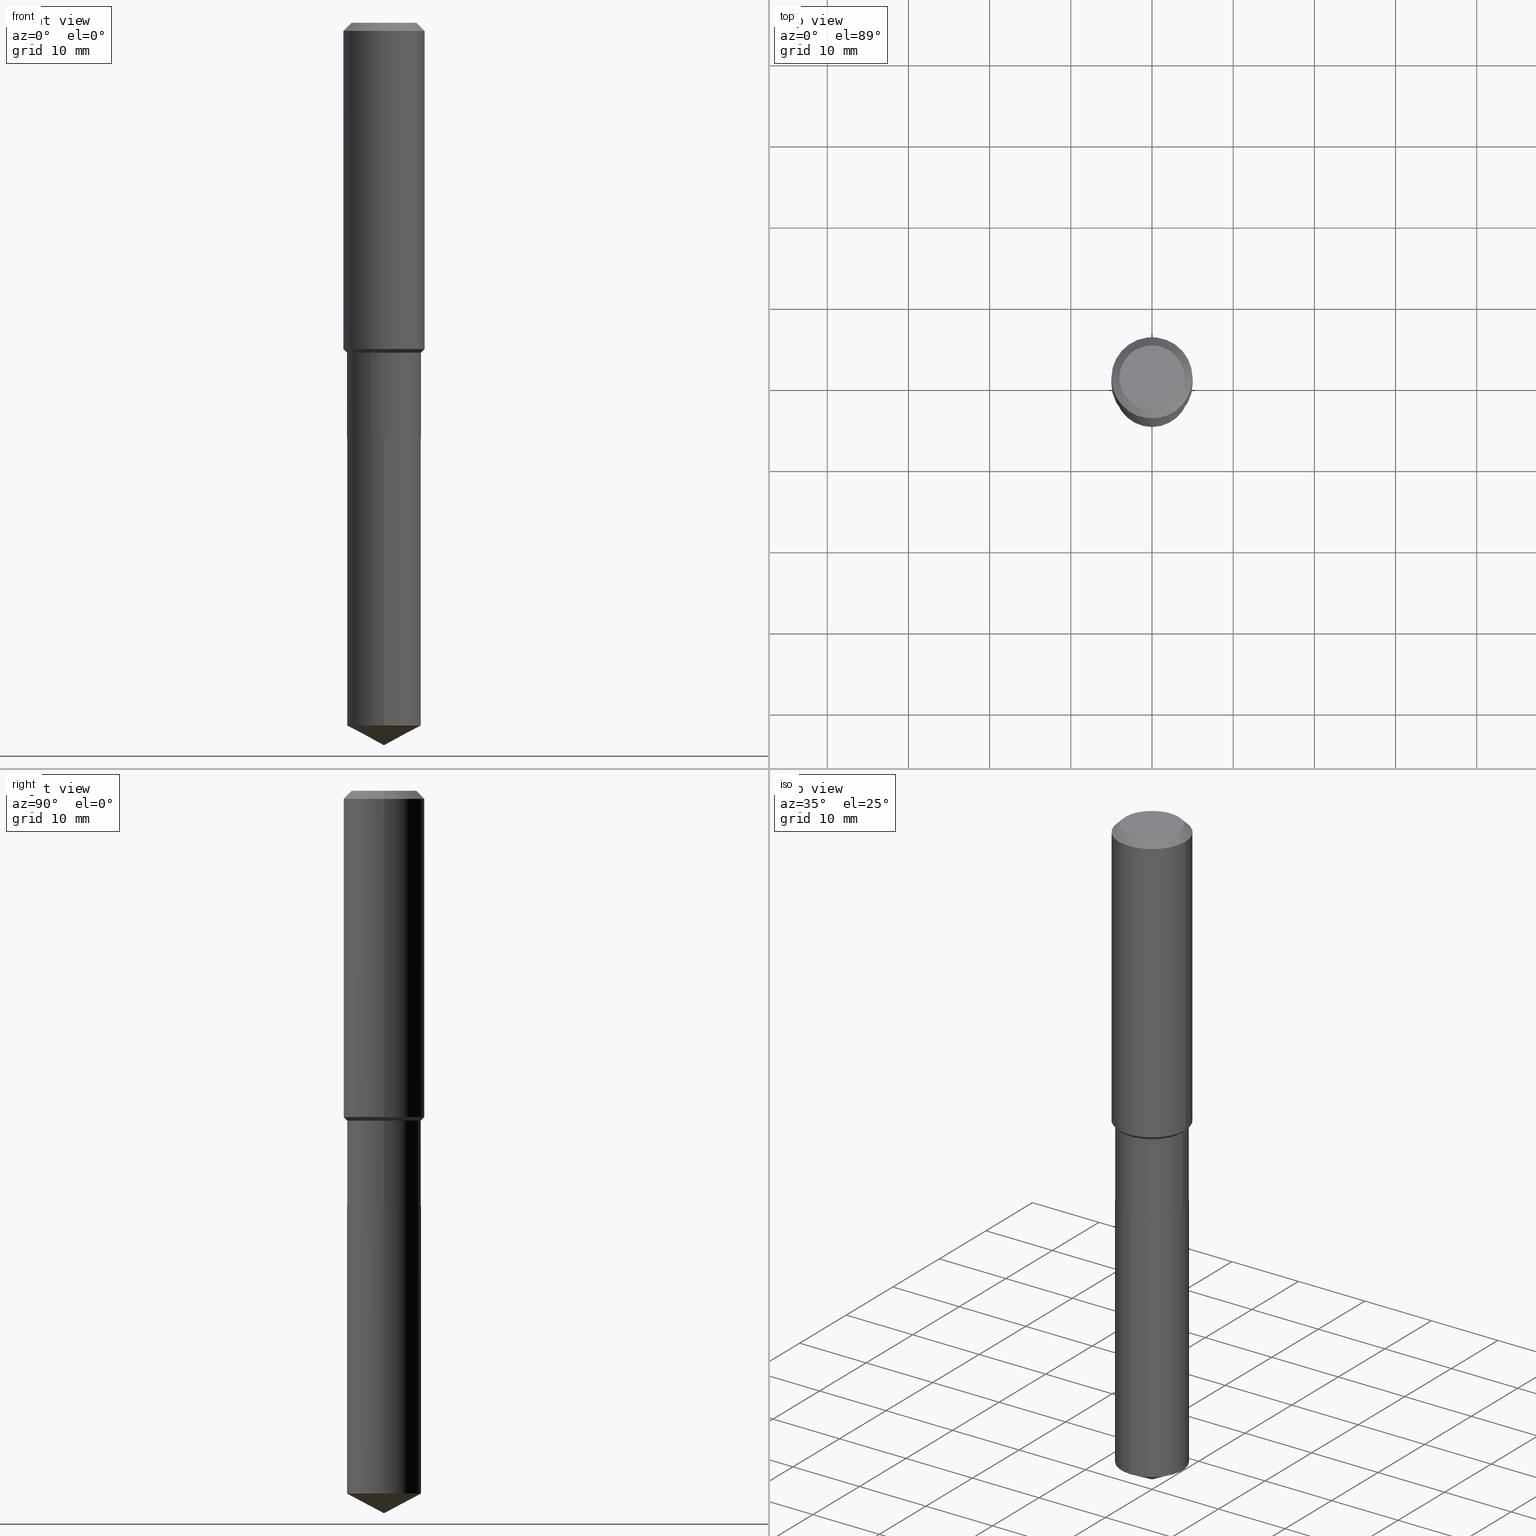
[diagram: canonical four-view strip — front | top / right | iso, engineering-drawing reading convention]
A machine part, canonical four-view strip (front | top / right | iso — engineering-drawing reading convention). The complete STEP part file that produces these views, byte-faithful:
ISO-10303-21;
HEADER;
FILE_DESCRIPTION (( 'STEP AP203' ),
    '1' );
FILE_NAME ('54719.STEP',
    '2024-04-24T15:32:47',
    ( '' ),
    ( '' ),
    'SwSTEP 2.0',
    'SolidWorks 2023',
    '' );
FILE_SCHEMA (( 'CONFIG_CONTROL_DESIGN' ));
ENDSEC;

DATA;
#1 = CARTESIAN_POINT ( 'NONE',  ( 8.335094467611322016E-29, -1.190008731636025747E-14, -3.408351815130433060 ) ) ;
#2 = CC_DESIGN_DATE_AND_TIME_ASSIGNMENT ( #390, #47, ( #488 ) ) ;
#3 = LINE ( 'NONE', #32, #51 ) ;
#4 = ORIENTED_EDGE ( 'NONE', *, *, #30, .F. ) ;
#5 = CARTESIAN_POINT ( 'NONE',  ( 8.568649567657371395E-29, -1.223384239470263294E-14, -3.503899999999999793 ) ) ;
#6 = EDGE_CURVE ( 'NONE', #261, #141, #393, .T. ) ;
#7 = CARTESIAN_POINT ( 'NONE',  ( 0.1968500000000000250, -1.512055823412797189E-15, -0.03937000000000029365 ) ) ;
#8 = AXIS2_PLACEMENT_3D ( 'NONE', #248, #286, #432 ) ;
#9 = ORIENTED_EDGE ( 'NONE', *, *, #270, .T. ) ;
#10 = ADVANCED_BREP_SHAPE_REPRESENTATION ( '54719', ( #116, #442, #246 ), #117 ) ;
#11 = FACE_OUTER_BOUND ( 'NONE', #445, .T. ) ;
#12 = CARTESIAN_POINT ( 'NONE',  ( 0.1796999999999999986, -8.281095439468167762E-15, -2.012399999999999967 ) ) ;
#13 = CARTESIAN_POINT ( 'NONE',  ( 0.000000000000000000, 0.000000000000000000, 0.000000000000000000 ) ) ;
#14 = DIRECTION ( 'NONE',  ( 1.000000000000000000, -6.982962677686265922E-15, 4.876223630392693006E-29 ) ) ;
#15 = ADVANCED_FACE ( 'NONE', ( #108 ), #463, .T. ) ;
#16 = CARTESIAN_POINT ( 'NONE',  ( -1.254838393180172821E-15, -0.1797000000000070208, -2.012899999999999245 ) ) ;
#17 = AXIS2_PLACEMENT_3D ( 'NONE', #349, #416, #346 ) ;
#18 = AXIS2_PLACEMENT_3D ( 'NONE', #311, #143, #453 ) ;
#19 = ORIENTED_EDGE ( 'NONE', *, *, #232, .F. ) ;
#20 = ORIENTED_EDGE ( 'NONE', *, *, #289, .F. ) ;
#21 = EDGE_CURVE ( 'NONE', #310, #300, #255, .T. ) ;
#22 = ORIENTED_EDGE ( 'NONE', *, *, #206, .F. ) ;
#23 = PERSON_AND_ORGANIZATION ( #220, #157 ) ;
#24 = AXIS2_PLACEMENT_3D ( 'NONE', #308, #348, #195 ) ;
#25 = DIRECTION ( 'NONE',  ( -2.445468806185136597E-29, 3.491481338843145583E-15, 1.000000000000000000 ) ) ;
#26 = ORIENTED_EDGE ( 'NONE', *, *, #289, .T. ) ;
#27 = APPROVAL_DATE_TIME ( #214, #326 ) ;
#28 = ORIENTED_EDGE ( 'NONE', *, *, #21, .T. ) ;
#29 = PERSON_AND_ORGANIZATION ( #220, #157 ) ;
#30 = EDGE_CURVE ( 'NONE', #306, #476, #380, .T. ) ;
#31 = DIRECTION ( 'NONE',  ( -2.445468806185136597E-29, 3.491481338843145583E-15, 1.000000000000000000 ) ) ;
#32 = CARTESIAN_POINT ( 'NONE',  ( -0.1968500000000000250, 1.237136582792286225E-15, -0.03937000000000029365 ) ) ;
#33 = COORDINATED_UNIVERSAL_TIME_OFFSET ( 5, 0, .BEHIND. ) ;
#34 = AXIS2_PLACEMENT_3D ( 'NONE', #269, #159, #465 ) ;
#35 = CIRCLE ( 'NONE', #56, 0.1796999999999999986 ) ;
#36 = ORIENTED_EDGE ( 'NONE', *, *, #115, .F. ) ;
#37 = DIRECTION ( 'NONE',  ( -2.445468806185136597E-29, 3.491481338843145583E-15, 1.000000000000000000 ) ) ;
#38 = AXIS2_PLACEMENT_3D ( 'NONE', #205, #433, #127 ) ;
#39 = CARTESIAN_POINT ( 'NONE',  ( -8.771169578878997891E-28, 1.252231229896107347E-13, 35.86617874015747987 ) ) ;
#40 = CARTESIAN_POINT ( 'NONE',  ( -1.254838393180172821E-15, -0.1797000000000070208, -2.012899999999999245 ) ) ;
#41 = ORIENTED_EDGE ( 'NONE', *, *, #175, .T. ) ;
#42 = DIRECTION ( 'NONE',  ( -6.982962677686265922E-15, -1.000000000000000000, 3.040454083098790380E-15 ) ) ;
#43 = ADVANCED_FACE ( 'NONE', ( #277 ), #239, .T. ) ;
#44 = VECTOR ( 'NONE', #122, 39.37007874015748143 ) ;
#45 = DIRECTION ( 'NONE',  ( -2.445468806185136597E-29, 3.491481338843145583E-15, 1.000000000000000000 ) ) ;
#46 = APPROVAL_PERSON_ORGANIZATION ( #229, #461, #382 ) ;
#47 = DATE_TIME_ROLE ( 'classification_date' ) ;
#48 = EDGE_LOOP ( 'NONE', ( #20, #106, #183 ) ) ;
#49 = EDGE_CURVE ( 'NONE', #141, #261, #410, .T. ) ;
#50 = LINE ( 'NONE', #240, #125 ) ;
#51 = VECTOR ( 'NONE', #422, 39.37007874015748143 ) ;
#52 = CYLINDRICAL_SURFACE ( 'NONE', #230, 0.1796999999999999986 ) ;
#53 = EDGE_CURVE ( 'NONE', #55, #261, #3, .T. ) ;
#54 = CC_DESIGN_PERSON_AND_ORGANIZATION_ASSIGNMENT ( #142, #368, ( #395 ) ) ;
#55 = VERTEX_POINT ( 'NONE', #156 ) ;
#56 = AXIS2_PLACEMENT_3D ( 'NONE', #71, #31, #299 ) ;
#57 = ORIENTED_EDGE ( 'NONE', *, *, #371, .F. ) ;
#58 = ADVANCED_FACE ( 'NONE', ( #151 ), #114, .T. ) ;
#59 = ORIENTED_EDGE ( 'NONE', *, *, #365, .T. ) ;
#60 = CC_DESIGN_PERSON_AND_ORGANIZATION_ASSIGNMENT ( #103, #376, ( #198 ) ) ;
#61 = DIRECTION ( 'NONE',  ( 1.000000000000000000, -6.982962677686264344E-15, 0.000000000000000000 ) ) ;
#62 = ORIENTED_EDGE ( 'NONE', *, *, #53, .F. ) ;
#63 = AXIS2_PLACEMENT_3D ( 'NONE', #381, #69, #42 ) ;
#64 = APPROVAL_PERSON_ORGANIZATION ( #335, #326, #99 ) ;
#65 = CARTESIAN_POINT ( 'NONE',  ( -0.1796999999999999709, -5.028770001789819555E-15, -1.599599999999999467 ) ) ;
#66 = EDGE_LOOP ( 'NONE', ( #178, #340, #95, #367 ) ) ;
#67 = ADVANCED_FACE ( 'NONE', ( #119 ), #468, .T. ) ;
#68 = SECURITY_CLASSIFICATION_LEVEL ( 'unclassified' ) ;
#69 = DIRECTION ( 'NONE',  ( -2.445523572107205951E-29, 3.491402910925659802E-15, 1.000000000000000000 ) ) ;
#70 = CC_DESIGN_DATE_AND_TIME_ASSIGNMENT ( #296, #446, ( #395 ) ) ;
#71 = CARTESIAN_POINT ( 'NONE',  ( 4.921261425566968280E-29, -7.026257046287946031E-15, -2.012399999999999967 ) ) ;
#72 = CARTESIAN_POINT ( 'NONE',  ( -8.771169578878997891E-28, 1.252231229896107347E-13, 35.86617874015747987 ) ) ;
#73 = VECTOR ( 'NONE', #378, 39.37007874015748143 ) ;
#74 = CIRCLE ( 'NONE', #18, 0.1968500000000002192 ) ;
#75 = ORIENTED_EDGE ( 'NONE', *, *, #190, .F. ) ;
#76 = CARTESIAN_POINT ( 'NONE',  ( 3.911771902373742968E-29, -5.584973549613493521E-15, -1.599599999999999467 ) ) ;
#77 = CARTESIAN_POINT ( 'NONE',  ( 0.1796999999999999709, -6.839811942793715251E-15, -1.599599999999999467 ) ) ;
#78 = VERTEX_POINT ( 'NONE', #77 ) ;
#79 = CARTESIAN_POINT ( 'NONE',  ( 9.627810689950954155E-31, -1.374596203102556547E-16, -0.03937000000000029365 ) ) ;
#80 = EDGE_LOOP ( 'NONE', ( #401, #408, #36, #91 ) ) ;
#81 = PRODUCT_RELATED_PRODUCT_CATEGORY ( 'detail', '', ( #235 ) ) ;
#82 = CARTESIAN_POINT ( 'NONE',  ( -1.254838393180138308E-15, -0.1797000000000118503, -3.408351815130432616 ) ) ;
#83 = EDGE_CURVE ( 'NONE', #55, #466, #362, .T. ) ;
#84 = DIRECTION ( 'NONE',  ( 1.000000000000000000, -6.982962677686267499E-15, 0.000000000000000000 ) ) ;
#85 = AXIS2_PLACEMENT_3D ( 'NONE', #274, #188, #489 ) ;
#86 = DIRECTION ( 'NONE',  ( 2.445523572107205390E-29, -3.491402910925659802E-15, -1.000000000000000000 ) ) ;
#87 = LOCAL_TIME ( 11, 32, 47.00000000000000000, #456 ) ;
#88 = APPROVAL ( #271, 'UNSPECIFIED' ) ;
#89 = DIRECTION ( 'NONE',  ( -1.000000000000000000, 6.982962677686265922E-15, 0.000000000000000000 ) ) ;
#90 = ORIENTED_EDGE ( 'NONE', *, *, #354, .F. ) ;
#91 = ORIENTED_EDGE ( 'NONE', *, *, #471, .F. ) ;
#92 = AXIS2_PLACEMENT_3D ( 'NONE', #467, #254, #89 ) ;
#93 = EDGE_CURVE ( 'NONE', #293, #259, #307, .T. ) ;
#94 = CIRCLE ( 'NONE', #322, 0.1791999999999999982 ) ;
#95 = ORIENTED_EDGE ( 'NONE', *, *, #206, .T. ) ;
#96 = PERSON_AND_ORGANIZATION_ROLE ( 'design_owner' ) ;
#97 = PLANE ( 'NONE',  #454 ) ;
#98 = ORIENTED_EDGE ( 'NONE', *, *, #337, .T. ) ;
#99 = APPROVAL_ROLE ( '' ) ;
#100 = EDGE_CURVE ( 'NONE', #209, #306, #464, .T. ) ;
#101 = CARTESIAN_POINT ( 'NONE',  ( 4.922484159970061082E-29, -7.028002786957366746E-15, -2.012899999999999689 ) ) ;
#102 = ORIENTED_EDGE ( 'NONE', *, *, #179, .T. ) ;
#103 = PERSON_AND_ORGANIZATION ( #220, #157 ) ;
#104 = CLOSED_SHELL ( 'NONE', ( #324, #15, #43, #124, #283 ) ) ;
#105 = VECTOR ( 'NONE', #260, 39.37007874015748143 ) ;
#106 = ORIENTED_EDGE ( 'NONE', *, *, #93, .T. ) ;
#107 = DIRECTION ( 'NONE',  ( 2.445468806185136597E-29, -3.491481338843145583E-15, -1.000000000000000000 ) ) ;
#108 = FACE_OUTER_BOUND ( 'NONE', #336, .T. ) ;
#109 = CYLINDRICAL_SURFACE ( 'NONE', #280, 0.1968500000000001082 ) ;
#110 = CARTESIAN_POINT ( 'NONE',  ( 0.1791999999999999982, -8.279349698798745469E-15, -2.012899999999999689 ) ) ;
#111 = DIRECTION ( 'NONE',  ( -6.982962677686267499E-15, -1.000000000000000000, 3.541896320645542330E-15 ) ) ;
#112 = PERSON_AND_ORGANIZATION_ROLE ( 'classification_officer' ) ;
#113 = DIRECTION ( 'NONE',  ( -6.982962677686265922E-15, -1.000000000000000000, 3.040454083098790380E-15 ) ) ;
#114 = CYLINDRICAL_SURFACE ( 'NONE', #85, 0.1968500000000001082 ) ;
#115 = EDGE_CURVE ( 'NONE', #300, #310, #438, .T. ) ;
#116 = MANIFOLD_SOLID_BREP ( 'Body-Move/Copy2[1]', #104 ) ;
#117 =( GEOMETRIC_REPRESENTATION_CONTEXT ( 3 ) GLOBAL_UNCERTAINTY_ASSIGNED_CONTEXT ( ( #133 ) ) GLOBAL_UNIT_ASSIGNED_CONTEXT ( ( #174, #249, #170 ) ) REPRESENTATION_CONTEXT ( 'NONE', 'WORKASPACE' ) );
#118 = CARTESIAN_POINT ( 'NONE',  ( 9.627810689950954155E-31, -1.374596203102556547E-16, -0.03937000000000029365 ) ) ;
#119 = FACE_OUTER_BOUND ( 'NONE', #364, .T. ) ;
#120 = CARTESIAN_POINT ( 'NONE',  ( 0.1574800000000000089, -1.284169937930321189E-15, 3.855188123724205385E-18 ) ) ;
#121 = DIRECTION ( 'NONE',  ( -2.445523572107205951E-29, 3.491402910925659802E-15, 1.000000000000000000 ) ) ;
#122 = DIRECTION ( 'NONE',  ( 0.7071067811866199593, -2.468850131083015945E-15, 0.7071067811864750752 ) ) ;
#123 = VERTEX_POINT ( 'NONE', #144 ) ;
#124 = ADVANCED_FACE ( 'NONE', ( #458 ), #233, .T. ) ;
#125 = VECTOR ( 'NONE', #281, 39.37007874015748143 ) ;
#126 = CC_DESIGN_APPROVAL ( #461, ( #488 ) ) ;
#127 = DIRECTION ( 'NONE',  ( 1.000000000000000000, -6.982962677686263555E-15, 0.000000000000000000 ) ) ;
#128 = DIRECTION ( 'NONE',  ( 1.000000000000000000, -6.982962677686264344E-15, 0.000000000000000000 ) ) ;
#129 = DIRECTION ( 'NONE',  ( -2.445468806185136597E-29, 3.491481338843145583E-15, 1.000000000000000000 ) ) ;
#130 = LENGTH_MEASURE_WITH_UNIT ( LENGTH_MEASURE( 0.02539999999999999897 ), #360 );
#131 = CIRCLE ( 'NONE', #189, 0.1791999999999999982 ) ;
#132 = DIRECTION ( 'NONE',  ( 0.000000000000000000, 0.000000000000000000, 1.000000000000000000 ) ) ;
#133 = UNCERTAINTY_MEASURE_WITH_UNIT (LENGTH_MEASURE( 1.000000000000000082E-05 ), #174, 'distance_accuracy_value', 'NONE');
#134 = ORIENTED_EDGE ( 'NONE', *, *, #83, .T. ) ;
#135 = ORIENTED_EDGE ( 'NONE', *, *, #53, .T. ) ;
#136 = CARTESIAN_POINT ( 'NONE',  ( 8.568871977626399103E-29, -1.223352665959241729E-14, -3.503899999999999793 ) ) ;
#137 = ORIENTED_EDGE ( 'NONE', *, *, #93, .F. ) ;
#138 = AXIS2_PLACEMENT_3D ( 'NONE', #227, #37, #192 ) ;
#139 = EDGE_LOOP ( 'NONE', ( #440, #405, #316, #389 ) ) ;
#140 = EDGE_CURVE ( 'NONE', #306, #78, #208, .T. ) ;
#141 = VERTEX_POINT ( 'NONE', #7 ) ;
#142 = PERSON_AND_ORGANIZATION ( #220, #157 ) ;
#143 = DIRECTION ( 'NONE',  ( -2.445468806185136597E-29, 3.491481338843145583E-15, 1.000000000000000000 ) ) ;
#144 = CARTESIAN_POINT ( 'NONE',  ( 1.276845296160983249E-15, 0.1796999999999880915, -3.408351815130433504 ) ) ;
#145 = AXIS2_PLACEMENT_3D ( 'NONE', #76, #428, #147 ) ;
#146 = LOCAL_TIME ( 11, 32, 47.00000000000000000, #301 ) ;
#147 = DIRECTION ( 'NONE',  ( 1.000000000000000000, -6.982962677686263555E-15, 0.000000000000000000 ) ) ;
#148 = APPROVAL_ROLE ( '' ) ;
#149 = ORIENTED_EDGE ( 'NONE', *, *, #115, .T. ) ;
#150 = CARTESIAN_POINT ( 'NONE',  ( 4.922484159970061082E-29, -7.028002786957366746E-15, -2.012899999999999689 ) ) ;
#151 = FACE_OUTER_BOUND ( 'NONE', #66, .T. ) ;
#152 = ADVANCED_FACE ( 'NONE', ( #455 ), #266, .T. ) ;
#153 = APPLICATION_PROTOCOL_DEFINITION ( 'international standard', 'config_control_design', 1994, #396 ) ;
#154 = ORIENTED_EDGE ( 'NONE', *, *, #386, .T. ) ;
#155 = DIRECTION ( 'NONE',  ( 1.000000000000000000, -6.982962677686264344E-15, 0.000000000000000000 ) ) ;
#156 = CARTESIAN_POINT ( 'NONE',  ( -0.1574800000000000089, 1.168406772637159618E-15, 3.855188123707939751E-18 ) ) ;
#157 = ORGANIZATION ( 'UNSPECIFIED', 'UNSPECIFIED', '' ) ;
#158 = CARTESIAN_POINT ( 'NONE',  ( 4.922484159970061082E-29, -7.028002786957366746E-15, -2.012899999999999689 ) ) ;
#159 = DIRECTION ( 'NONE',  ( -2.445468806185136597E-29, 3.491481338843145583E-15, 1.000000000000000000 ) ) ;
#160 = DATE_AND_TIME ( #163, #394 ) ;
#161 = EDGE_CURVE ( 'NONE', #123, #310, #329, .T. ) ;
#162 = ORIENTED_EDGE ( 'NONE', *, *, #190, .T. ) ;
#163 = CALENDAR_DATE ( 2024, 24, 4 ) ;
#164 = LINE ( 'NONE', #391, #44 ) ;
#165 = PLANE ( 'NONE',  #423 ) ;
#166 = AXIS2_PLACEMENT_3D ( 'NONE', #118, #107, #415 ) ;
#167 = CARTESIAN_POINT ( 'NONE',  ( -0.1791999999999999982, -5.754710204475267818E-15, -2.012899999999999689 ) ) ;
#168 = ADVANCED_FACE ( 'NONE', ( #409 ), #109, .T. ) ;
#169 = CARTESIAN_POINT ( 'NONE',  ( -9.427742298522567634E-47, 1.346031739168368355E-32, 3.855188123715870730E-18 ) ) ;
#170 =( NAMED_UNIT ( * ) SI_UNIT ( $, .STERADIAN. ) SOLID_ANGLE_UNIT ( ) );
#171 = DIRECTION ( 'NONE',  ( -2.445468806185136597E-29, 3.491481338843145583E-15, 1.000000000000000000 ) ) ;
#172 = CARTESIAN_POINT ( 'NONE',  ( 0.1968500000000002192, -6.899690847754875584E-15, -1.582449999999999468 ) ) ;
#173 = CARTESIAN_POINT ( 'NONE',  ( 0.000000000000000000, 0.000000000000000000, 0.000000000000000000 ) ) ;
#174 =( CONVERSION_BASED_UNIT ( 'INCH', #130 ) LENGTH_UNIT ( ) NAMED_UNIT ( #383 ) );
#175 = EDGE_CURVE ( 'NONE', #370, #264, #164, .T. ) ;
#176 = ORIENTED_EDGE ( 'NONE', *, *, #30, .T. ) ;
#177 = ORIENTED_EDGE ( 'NONE', *, *, #175, .F. ) ;
#178 = ORIENTED_EDGE ( 'NONE', *, *, #337, .F. ) ;
#179 = EDGE_CURVE ( 'NONE', #78, #279, #50, .T. ) ;
#180 = AXIS2_PLACEMENT_3D ( 'NONE', #79, #237, #196 ) ;
#181 = AXIS2_PLACEMENT_3D ( 'NONE', #185, #272, #487 ) ;
#182 = CARTESIAN_POINT ( 'NONE',  ( 1.276845296160983249E-15, 0.1796999999999929765, -2.012900000000000134 ) ) ;
#183 = ORIENTED_EDGE ( 'NONE', *, *, #302, .F. ) ;
#184 = CALENDAR_DATE ( 2024, 24, 4 ) ;
#185 = CARTESIAN_POINT ( 'NONE',  ( 3.869832112347667949E-29, -5.525094644652333976E-15, -1.582449999999999468 ) ) ;
#186 = ORIENTED_EDGE ( 'NONE', *, *, #418, .F. ) ;
#187 = LINE ( 'NONE', #338, #470 ) ;
#188 = DIRECTION ( 'NONE',  ( -2.445468806185136597E-29, 3.491481338843145583E-15, 1.000000000000000000 ) ) ;
#189 = AXIS2_PLACEMENT_3D ( 'NONE', #101, #303, #155 ) ;
#190 = EDGE_CURVE ( 'NONE', #222, #209, #318, .T. ) ;
#191 = ORIENTED_EDGE ( 'NONE', *, *, #386, .F. ) ;
#192 = DIRECTION ( 'NONE',  ( 1.000000000000000000, -6.982962677686265922E-15, 4.876176775795935232E-29 ) ) ;
#193 = DIRECTION ( 'NONE',  ( -2.445523572107205951E-29, 3.491402910925659802E-15, 1.000000000000000000 ) ) ;
#194 = EDGE_LOOP ( 'NONE', ( #134, #9 ) ) ;
#195 = DIRECTION ( 'NONE',  ( 1.000000000000000000, -6.982962677686263555E-15, 0.000000000000000000 ) ) ;
#196 = DIRECTION ( 'NONE',  ( 1.000000000000000000, -6.982962677686265922E-15, 0.000000000000000000 ) ) ;
#197 = DIRECTION ( 'NONE',  ( 1.000000000000000000, -6.982962677686263555E-15, 0.000000000000000000 ) ) ;
#198 = PRODUCT_DEFINITION_FORMATION_WITH_SPECIFIED_SOURCE ( 'ANY', '', #235, .NOT_KNOWN. ) ;
#199 = DIRECTION ( 'NONE',  ( -2.445468806185136877E-29, 3.491481338843145188E-15, 1.000000000000000000 ) ) ;
#200 = ORIENTED_EDGE ( 'NONE', *, *, #100, .T. ) ;
#201 = APPROVAL_STATUS ( 'not_yet_approved' ) ;
#202 = ADVANCED_FACE ( 'NONE', ( #353 ), #469, .T. ) ;
#203 = VECTOR ( 'NONE', #472, 39.37007874015748143 ) ;
#204 = DIRECTION ( 'NONE',  ( 1.000000000000000000, -6.982962677686265922E-15, 4.876176775795935232E-29 ) ) ;
#205 = CARTESIAN_POINT ( 'NONE',  ( 3.911771902373742968E-29, -5.584973549613493521E-15, -1.599599999999999467 ) ) ;
#206 = EDGE_CURVE ( 'NONE', #279, #141, #251, .T. ) ;
#207 = LINE ( 'NONE', #16, #203 ) ;
#208 = CIRCLE ( 'NONE', #217, 0.1796999999999999709 ) ;
#209 = VERTEX_POINT ( 'NONE', #247 ) ;
#210 = LOCAL_TIME ( 11, 32, 47.00000000000000000, #33 ) ;
#211 = CARTESIAN_POINT ( 'NONE',  ( 4.921261425566968280E-29, -7.026257046287946031E-15, -2.012399999999999967 ) ) ;
#212 = EDGE_LOOP ( 'NONE', ( #75, #482, #41, #332 ) ) ;
#213 = ORIENTED_EDGE ( 'NONE', *, *, #319, .T. ) ;
#214 = DATE_AND_TIME ( #219, #87 ) ;
#215 = ADVANCED_FACE ( 'NONE', ( #325 ), #52, .T. ) ;
#216 = ORIENTED_EDGE ( 'NONE', *, *, #49, .F. ) ;
#217 = AXIS2_PLACEMENT_3D ( 'NONE', #304, #315, #197 ) ;
#218 = CONICAL_SURFACE ( 'NONE', #38, 0.1796999999999999709, 0.7853981633974522758 ) ;
#219 = CALENDAR_DATE ( 2024, 24, 4 ) ;
#220 = PERSON ( 'UNSPECIFIED', 'UNSPECIFIED', 'UNSPECIFIED', ('UNSPECIFIED'), ('UNSPECIFIED'), ('UNSPECIFIED') ) ;
#221 = DIRECTION ( 'NONE',  ( -2.445468806185136877E-29, 3.491481338843145188E-15, 1.000000000000000000 ) ) ;
#222 = VERTEX_POINT ( 'NONE', #359 ) ;
#223 = PERSON_AND_ORGANIZATION ( #220, #157 ) ;
#224 = CARTESIAN_POINT ( 'NONE',  ( 0.1968500000000000250, -1.487948651171581601E-15, -0.03937000000000029365 ) ) ;
#225 = DIRECTION ( 'NONE',  ( -2.445523572107205951E-29, 3.491402910925659802E-15, 1.000000000000000000 ) ) ;
#226 = ADVANCED_FACE ( 'NONE', ( #287 ), #258, .T. ) ;
#227 = CARTESIAN_POINT ( 'NONE',  ( 0.000000000000000000, 0.000000000000000000, 0.000000000000000000 ) ) ;
#228 = AXIS2_PLACEMENT_3D ( 'NONE', #72, #225, #111 ) ;
#229 = PERSON_AND_ORGANIZATION ( #220, #157 ) ;
#230 = AXIS2_PLACEMENT_3D ( 'NONE', #13, #171, #204 ) ;
#231 = CARTESIAN_POINT ( 'NONE',  ( -9.427742298522567634E-47, 1.346031739168368355E-32, 3.855188123715870730E-18 ) ) ;
#232 = EDGE_CURVE ( 'NONE', #259, #123, #474, .T. ) ;
#233 = CYLINDRICAL_SURFACE ( 'NONE', #63, 0.1796999999999999986 ) ;
#234 = SHAPE_DEFINITION_REPRESENTATION ( #344, #10 ) ;
#235 = PRODUCT ( '54719', '54719', '', ( #253 ) ) ;
#236 = DIRECTION ( 'NONE',  ( -2.445468806185136597E-29, 3.491481338843145583E-15, 1.000000000000000000 ) ) ;
#237 = DIRECTION ( 'NONE',  ( -2.445468806185136597E-29, 3.491481338843145583E-15, 1.000000000000000000 ) ) ;
#238 = CC_DESIGN_PERSON_AND_ORGANIZATION_ASSIGNMENT ( #490, #112, ( #488 ) ) ;
#239 = CONICAL_SURFACE ( 'NONE', #313, 74.04434902938392327, 1.082104136236488712 ) ;
#240 = CARTESIAN_POINT ( 'NONE',  ( 0.1796999999999999709, -6.839811942793715251E-15, -1.599599999999999467 ) ) ;
#241 = AXIS2_PLACEMENT_3D ( 'NONE', #1, #345, #462 ) ;
#242 = ORIENTED_EDGE ( 'NONE', *, *, #270, .F. ) ;
#243 = ADVANCED_FACE ( 'NONE', ( #288 ), #218, .T. ) ;
#244 = CARTESIAN_POINT ( 'NONE',  ( -0.1968500000000000250, -1.432573757137536399E-15, -0.03937000000000029365 ) ) ;
#245 = AXIS2_PLACEMENT_3D ( 'NONE', #460, #121, #309 ) ;
#246 = AXIS2_PLACEMENT_3D ( 'NONE', #173, #132, #399 ) ;
#247 = CARTESIAN_POINT ( 'NONE',  ( -0.1796999999999999986, -5.028770001789819555E-15, -2.012399999999999967 ) ) ;
#248 = CARTESIAN_POINT ( 'NONE',  ( 8.335094467611322016E-29, -1.190008731636025747E-14, -3.408351815130433060 ) ) ;
#249 =( NAMED_UNIT ( * ) PLANE_ANGLE_UNIT ( ) SI_UNIT ( $, .RADIAN. ) );
#250 = ADVANCED_FACE ( 'NONE', ( #392 ), #297, .F. ) ;
#251 = LINE ( 'NONE', #397, #403 ) ;
#252 = EDGE_LOOP ( 'NONE', ( #4, #257, #102, #186 ) ) ;
#253 = MECHANICAL_CONTEXT ( 'NONE', #396, 'mechanical' ) ;
#254 = DIRECTION ( 'NONE',  ( 2.445468806185136597E-29, -3.491481338843145583E-15, -1.000000000000000000 ) ) ;
#255 = CIRCLE ( 'NONE', #245, 0.1796999999999999986 ) ;
#256 = CIRCLE ( 'NONE', #241, 0.1796999999999999986 ) ;
#257 = ORIENTED_EDGE ( 'NONE', *, *, #140, .T. ) ;
#258 = CONICAL_SURFACE ( 'NONE', #357, 0.1791999999999999982, 0.7853981633975507526 ) ;
#259 = VERTEX_POINT ( 'NONE', #82 ) ;
#260 = DIRECTION ( 'NONE',  ( 6.273719981627772387E-15, 0.8829475928589306521, 0.4694715627858838669 ) ) ;
#261 = VERTEX_POINT ( 'NONE', #244 ) ;
#262 = CARTESIAN_POINT ( 'NONE',  ( 1.276845296160949131E-15, 0.1796999999999929765, -2.012900000000000134 ) ) ;
#263 = DIRECTION ( 'NONE',  ( -2.445523572107205951E-29, 3.491402910925659802E-15, 1.000000000000000000 ) ) ;
#264 = VERTEX_POINT ( 'NONE', #12 ) ;
#265 = APPLICATION_CONTEXT ( 'configuration controlled 3d designs of mechanical parts and assemblies' ) ;
#266 = CONICAL_SURFACE ( 'NONE', #34, 0.1791999999999999982, 0.7853981633975507526 ) ;
#267 = CIRCLE ( 'NONE', #24, 0.1796999999999999709 ) ;
#268 = COORDINATED_UNIVERSAL_TIME_OFFSET ( 5, 0, .BEHIND. ) ;
#269 = CARTESIAN_POINT ( 'NONE',  ( 4.922484159970061082E-29, -7.028002786957366746E-15, -2.012899999999999689 ) ) ;
#270 = EDGE_CURVE ( 'NONE', #466, #55, #328, .T. ) ;
#271 = APPROVAL_STATUS ( 'not_yet_approved' ) ;
#272 = DIRECTION ( 'NONE',  ( -2.445468806185136597E-29, 3.491481338843145583E-15, 1.000000000000000000 ) ) ;
#273 = FACE_OUTER_BOUND ( 'NONE', #80, .T. ) ;
#274 = CARTESIAN_POINT ( 'NONE',  ( 0.000000000000000000, 0.000000000000000000, 0.000000000000000000 ) ) ;
#275 = AXIS2_PLACEMENT_3D ( 'NONE', #211, #435, #84 ) ;
#276 = CARTESIAN_POINT ( 'NONE',  ( -0.1796999999999999986, 1.276845296160900024E-15, -8.839326357188065585E-30 ) ) ;
#277 = FACE_OUTER_BOUND ( 'NONE', #48, .T. ) ;
#278 = CARTESIAN_POINT ( 'NONE',  ( 0.000000000000000000, 0.000000000000000000, 0.000000000000000000 ) ) ;
#279 = VERTEX_POINT ( 'NONE', #172 ) ;
#280 = AXIS2_PLACEMENT_3D ( 'NONE', #278, #236, #358 ) ;
#281 = DIRECTION ( 'NONE',  ( 0.7071067811865503483, -2.468850131082286248E-15, 0.7071067811865446862 ) ) ;
#282 = CC_DESIGN_APPROVAL ( #88, ( #198 ) ) ;
#283 = ADVANCED_FACE ( 'NONE', ( #437 ), #97, .F. ) ;
#284 = DIRECTION ( 'NONE',  ( -1.000000000000000000, 6.982962677686265922E-15, -4.876176775795935793E-29 ) ) ;
#285 = CALENDAR_DATE ( 2024, 24, 4 ) ;
#286 = DIRECTION ( 'NONE',  ( -2.445523572107205951E-29, 3.491402910925659802E-15, 1.000000000000000000 ) ) ;
#287 = FACE_OUTER_BOUND ( 'NONE', #212, .T. ) ;
#288 = FACE_OUTER_BOUND ( 'NONE', #252, .T. ) ;
#289 = EDGE_CURVE ( 'NONE', #293, #123, #477, .T. ) ;
#290 = AXIS2_PLACEMENT_3D ( 'NONE', #425, #485, #350 ) ;
#291 = AXIS2_PLACEMENT_3D ( 'NONE', #484, #263, #113 ) ;
#292 = EDGE_LOOP ( 'NONE', ( #330, #448, #135, #426 ) ) ;
#293 = VERTEX_POINT ( 'NONE', #407 ) ;
#294 = ORIENTED_EDGE ( 'NONE', *, *, #179, .F. ) ;
#295 = EDGE_CURVE ( 'NONE', #222, #370, #131, .T. ) ;
#296 = DATE_AND_TIME ( #333, #146 ) ;
#297 = PLANE ( 'NONE',  #314 ) ;
#298 = ORIENTED_EDGE ( 'NONE', *, *, #402, .T. ) ;
#299 = DIRECTION ( 'NONE',  ( 1.000000000000000000, -6.982962677686267499E-15, 0.000000000000000000 ) ) ;
#300 = VERTEX_POINT ( 'NONE', #40 ) ;
#301 = COORDINATED_UNIVERSAL_TIME_OFFSET ( 5, 0, .BEHIND. ) ;
#302 = EDGE_CURVE ( 'NONE', #123, #259, #256, .T. ) ;
#303 = DIRECTION ( 'NONE',  ( -2.445468806185136597E-29, 3.491481338843145583E-15, 1.000000000000000000 ) ) ;
#304 = CARTESIAN_POINT ( 'NONE',  ( 3.911771902373742968E-29, -5.584973549613493521E-15, -1.599599999999999467 ) ) ;
#305 = CIRCLE ( 'NONE', #181, 0.1968500000000002192 ) ;
#306 = VERTEX_POINT ( 'NONE', #65 ) ;
#307 = LINE ( 'NONE', #5, #421 ) ;
#308 = CARTESIAN_POINT ( 'NONE',  ( 3.911771902373742968E-29, -5.584973549613493521E-15, -1.599599999999999467 ) ) ;
#309 = DIRECTION ( 'NONE',  ( -6.982962677686265922E-15, -1.000000000000000000, 3.040454083098790380E-15 ) ) ;
#310 = VERTEX_POINT ( 'NONE', #182 ) ;
#311 = CARTESIAN_POINT ( 'NONE',  ( 3.869832112347667949E-29, -5.525094644652333976E-15, -1.582449999999999468 ) ) ;
#312 = DIRECTION ( 'NONE',  ( -6.165590087286841551E-15, -0.8829475928589273215, 0.4694715627858899731 ) ) ;
#313 = AXIS2_PLACEMENT_3D ( 'NONE', #39, #193, #375 ) ;
#314 = AXIS2_PLACEMENT_3D ( 'NONE', #361, #447, #284 ) ;
#315 = DIRECTION ( 'NONE',  ( -2.445468806185136597E-29, 3.491481338843145583E-15, 1.000000000000000000 ) ) ;
#316 = ORIENTED_EDGE ( 'NONE', *, *, #471, .T. ) ;
#317 = DIRECTION ( 'NONE',  ( -2.438088387897960049E-29, 3.491481338843145188E-15, 1.000000000000000000 ) ) ;
#318 = LINE ( 'NONE', #167, #486 ) ;
#319 = EDGE_CURVE ( 'NONE', #209, #264, #35, .T. ) ;
#320 = COORDINATED_UNIVERSAL_TIME_OFFSET ( 5, 0, .BEHIND. ) ;
#321 = VECTOR ( 'NONE', #443, 39.37007874015748143 ) ;
#322 = AXIS2_PLACEMENT_3D ( 'NONE', #150, #25, #61 ) ;
#323 = DIRECTION ( 'NONE',  ( 1.000000000000000000, -6.982962677686265922E-15, 4.876176775795935793E-29 ) ) ;
#324 = ADVANCED_FACE ( 'NONE', ( #273 ), #450, .T. ) ;
#325 = FACE_OUTER_BOUND ( 'NONE', #413, .T. ) ;
#326 = APPROVAL ( #374, 'UNSPECIFIED' ) ;
#327 = DESIGN_CONTEXT ( 'detailed design', #265, 'design' ) ;
#328 = CIRCLE ( 'NONE', #404, 0.1574800000000000089 ) ;
#329 = LINE ( 'NONE', #262, #321 ) ;
#330 = ORIENTED_EDGE ( 'NONE', *, *, #402, .F. ) ;
#331 = CARTESIAN_POINT ( 'NONE',  ( 4.922484159970061082E-29, -7.028002786957366746E-15, -2.012899999999999689 ) ) ;
#332 = ORIENTED_EDGE ( 'NONE', *, *, #319, .F. ) ;
#333 = CALENDAR_DATE ( 2024, 24, 4 ) ;
#334 = ORIENTED_EDGE ( 'NONE', *, *, #475, .F. ) ;
#335 = PERSON_AND_ORGANIZATION ( #220, #157 ) ;
#336 = EDGE_LOOP ( 'NONE', ( #137, #26, #19 ) ) ;
#337 = EDGE_CURVE ( 'NONE', #476, #261, #369, .T. ) ;
#338 = CARTESIAN_POINT ( 'NONE',  ( 0.1796999999999999986, -1.254838393180221928E-15, 8.762489666105295644E-30 ) ) ;
#339 = ORIENTED_EDGE ( 'NONE', *, *, #140, .F. ) ;
#340 = ORIENTED_EDGE ( 'NONE', *, *, #418, .T. ) ;
#341 = DIRECTION ( 'NONE',  ( 0.7071067811865450192, -7.319954787623246579E-15, -0.7071067811865500152 ) ) ;
#342 = DIRECTION ( 'NONE',  ( 1.000000000000000000, -6.982962677686265922E-15, 4.876223630392693006E-29 ) ) ;
#343 = LOCAL_TIME ( 11, 32, 47.00000000000000000, #268 ) ;
#344 = PRODUCT_DEFINITION_SHAPE ( 'NONE', 'NONE',  #395 ) ;
#345 = DIRECTION ( 'NONE',  ( -2.445523572107205951E-29, 3.491402910925659802E-15, 1.000000000000000000 ) ) ;
#346 = DIRECTION ( 'NONE',  ( 1.000000000000000000, -6.982962677686265922E-15, 0.000000000000000000 ) ) ;
#347 = ORIENTED_EDGE ( 'NONE', *, *, #49, .T. ) ;
#348 = DIRECTION ( 'NONE',  ( -2.445468806185136597E-29, 3.491481338843145583E-15, 1.000000000000000000 ) ) ;
#349 = CARTESIAN_POINT ( 'NONE',  ( 9.627810689950954155E-31, -1.374596203102556547E-16, -0.03937000000000029365 ) ) ;
#350 = DIRECTION ( 'NONE',  ( -6.982962677686265922E-15, -1.000000000000000000, 3.040454083098790380E-15 ) ) ;
#351 = APPROVAL_DATE_TIME ( #160, #461 ) ;
#352 = CC_DESIGN_APPROVAL ( #326, ( #395 ) ) ;
#353 = FACE_OUTER_BOUND ( 'NONE', #292, .T. ) ;
#354 = EDGE_CURVE ( 'NONE', #264, #78, #187, .T. ) ;
#355 = EDGE_LOOP ( 'NONE', ( #419, #213, #373, #339 ) ) ;
#356 = DIRECTION ( 'NONE',  ( -2.445468806185136597E-29, 3.491481338843145583E-15, 1.000000000000000000 ) ) ;
#357 = AXIS2_PLACEMENT_3D ( 'NONE', #436, #356, #128 ) ;
#358 = DIRECTION ( 'NONE',  ( 1.000000000000000000, -6.982962677686266711E-15, 4.876176775795935793E-29 ) ) ;
#359 = CARTESIAN_POINT ( 'NONE',  ( -0.1791999999999999982, -5.752060977301156617E-15, -2.012899999999999689 ) ) ;
#360 =( LENGTH_UNIT ( ) NAMED_UNIT ( * ) SI_UNIT ( $, .METRE. ) );
#361 = CARTESIAN_POINT ( 'NONE',  ( -4.713871149261283817E-47, 6.730158695841841775E-33, 1.927594061857935365E-18 ) ) ;
#362 = CIRCLE ( 'NONE', #430, 0.1574800000000000089 ) ;
#363 = CONICAL_SURFACE ( 'NONE', #166, 0.1968500000000000250, 0.7853981633974447263 ) ;
#364 = EDGE_LOOP ( 'NONE', ( #154, #176, #57, #294 ) ) ;
#365 = EDGE_CURVE ( 'NONE', #370, #222, #94, .T. ) ;
#366 = EDGE_LOOP ( 'NONE', ( #59, #162, #334, #177 ) ) ;
#367 = ORIENTED_EDGE ( 'NONE', *, *, #6, .F. ) ;
#368 = PERSON_AND_ORGANIZATION_ROLE ( 'creator' ) ;
#369 = LINE ( 'NONE', #411, #388 ) ;
#370 = VERTEX_POINT ( 'NONE', #110 ) ;
#371 = EDGE_CURVE ( 'NONE', #279, #476, #74, .T. ) ;
#372 = FACE_OUTER_BOUND ( 'NONE', #459, .T. ) ;
#373 = ORIENTED_EDGE ( 'NONE', *, *, #354, .T. ) ;
#374 = APPROVAL_STATUS ( 'not_yet_approved' ) ;
#375 = DIRECTION ( 'NONE',  ( -6.982962677686267499E-15, -1.000000000000000000, 3.541896320645542330E-15 ) ) ;
#376 = PERSON_AND_ORGANIZATION_ROLE ( 'creator' ) ;
#377 = DIRECTION ( 'NONE',  ( -2.445468806185136877E-29, 3.491481338843145188E-15, 1.000000000000000000 ) ) ;
#378 = DIRECTION ( 'NONE',  ( -0.7071067811865503483, 7.493145998870363626E-15, 0.7071067811865446862 ) ) ;
#379 = VECTOR ( 'NONE', #341, 39.37007874015748143 ) ;
#380 = LINE ( 'NONE', #385, #73 ) ;
#381 = CARTESIAN_POINT ( 'NONE',  ( 4.922484159970061082E-29, -7.028002786957366746E-15, -2.012899999999999689 ) ) ;
#382 = APPROVAL_ROLE ( '' ) ;
#383 = DIMENSIONAL_EXPONENTS ( 1.000000000000000000, 0.000000000000000000, 0.000000000000000000, 0.000000000000000000, 0.000000000000000000, 0.000000000000000000, 0.000000000000000000 ) ;
#384 = DIRECTION ( 'NONE',  ( -0.7071067811866199593, 7.493145998870616062E-15, 0.7071067811864750752 ) ) ;
#385 = CARTESIAN_POINT ( 'NONE',  ( -0.1796999999999999709, -4.308128253452593694E-15, -1.599599999999999467 ) ) ;
#386 = EDGE_CURVE ( 'NONE', #78, #306, #267, .T. ) ;
#387 = CLOSED_SHELL ( 'NONE', ( #152, #427, #168, #67, #215, #434, #243, #58, #202, #250, #439, #226 ) ) ;
#388 = VECTOR ( 'NONE', #377, 39.37007874015748143 ) ;
#389 = ORIENTED_EDGE ( 'NONE', *, *, #21, .F. ) ;
#390 = DATE_AND_TIME ( #285, #343 ) ;
#391 = CARTESIAN_POINT ( 'NONE',  ( 0.1791999999999999982, -8.279349698798745469E-15, -2.012899999999999689 ) ) ;
#392 = FACE_OUTER_BOUND ( 'NONE', #194, .T. ) ;
#393 = CIRCLE ( 'NONE', #180, 0.1968500000000000250 ) ;
#394 = LOCAL_TIME ( 11, 32, 47.00000000000000000, #320 ) ;
#395 = PRODUCT_DEFINITION ( 'UNKNOWN', '', #198, #327 ) ;
#396 = APPLICATION_CONTEXT ( 'configuration controlled 3d designs of mechanical parts and assemblies' ) ;
#397 = CARTESIAN_POINT ( 'NONE',  ( 0.1968500000000001082, -1.374596203102542397E-15, 9.598753983154305062E-30 ) ) ;
#398 = CARTESIAN_POINT ( 'NONE',  ( -0.1968500000000002192, -4.126391269308574611E-15, -1.582449999999999468 ) ) ;
#399 = DIRECTION ( 'NONE',  ( 1.000000000000000000, 0.000000000000000000, 0.000000000000000000 ) ) ;
#400 = DIRECTION ( 'NONE',  ( -2.445468806185136877E-29, 3.491481338843145188E-15, 1.000000000000000000 ) ) ;
#401 = ORIENTED_EDGE ( 'NONE', *, *, #232, .T. ) ;
#402 = EDGE_CURVE ( 'NONE', #466, #141, #457, .T. ) ;
#403 = VECTOR ( 'NONE', #400, 39.37007874015748143 ) ;
#404 = AXIS2_PLACEMENT_3D ( 'NONE', #169, #129, #14 ) ;
#405 = ORIENTED_EDGE ( 'NONE', *, *, #302, .T. ) ;
#406 = ORIENTED_EDGE ( 'NONE', *, *, #365, .F. ) ;
#407 = CARTESIAN_POINT ( 'NONE',  ( 8.568870044306437542E-29, -1.223352665959241887E-14, -3.503899999999999793 ) ) ;
#408 = ORIENTED_EDGE ( 'NONE', *, *, #161, .T. ) ;
#409 = FACE_OUTER_BOUND ( 'NONE', #478, .T. ) ;
#410 = CIRCLE ( 'NONE', #17, 0.1968500000000000250 ) ;
#411 = CARTESIAN_POINT ( 'NONE',  ( -0.1968500000000001082, 1.398703375343757985E-15, -9.682923725166787881E-30 ) ) ;
#412 = CC_DESIGN_PERSON_AND_ORGANIZATION_ASSIGNMENT ( #23, #483, ( #198 ) ) ;
#413 = EDGE_LOOP ( 'NONE', ( #429, #200, #191, #90 ) ) ;
#414 = APPROVAL_DATE_TIME ( #452, #88 ) ;
#415 = DIRECTION ( 'NONE',  ( -1.000000000000000000, 6.982962677686265922E-15, 0.000000000000000000 ) ) ;
#416 = DIRECTION ( 'NONE',  ( -2.445468806185136597E-29, 3.491481338843145583E-15, 1.000000000000000000 ) ) ;
#417 = CYLINDRICAL_SURFACE ( 'NONE', #138, 0.1796999999999999986 ) ;
#418 = EDGE_CURVE ( 'NONE', #476, #279, #305, .T. ) ;
#419 = ORIENTED_EDGE ( 'NONE', *, *, #100, .F. ) ;
#420 = FACE_OUTER_BOUND ( 'NONE', #355, .T. ) ;
#421 = VECTOR ( 'NONE', #312, 39.37007874015748143 ) ;
#422 = DIRECTION ( 'NONE',  ( -0.7071067811865450192, 2.468850131082230634E-15, -0.7071067811865500152 ) ) ;
#423 = AXIS2_PLACEMENT_3D ( 'NONE', #158, #317, #323 ) ;
#424 = CC_DESIGN_SECURITY_CLASSIFICATION ( #488, ( #198 ) ) ;
#425 = CARTESIAN_POINT ( 'NONE',  ( 4.922484159970061082E-29, -7.028002786957366746E-15, -2.012899999999999689 ) ) ;
#426 = ORIENTED_EDGE ( 'NONE', *, *, #6, .T. ) ;
#427 = ADVANCED_FACE ( 'NONE', ( #372 ), #363, .T. ) ;
#428 = DIRECTION ( 'NONE',  ( -2.445468806185136597E-29, 3.491481338843145583E-15, 1.000000000000000000 ) ) ;
#429 = ORIENTED_EDGE ( 'NONE', *, *, #475, .T. ) ;
#430 = AXIS2_PLACEMENT_3D ( 'NONE', #231, #45, #342 ) ;
#431 = APPROVAL_PERSON_ORGANIZATION ( #29, #88, #148 ) ;
#432 = DIRECTION ( 'NONE',  ( -6.982962677686265922E-15, -1.000000000000000000, 3.040454083098790380E-15 ) ) ;
#433 = DIRECTION ( 'NONE',  ( -2.445468806185136597E-29, 3.491481338843145583E-15, 1.000000000000000000 ) ) ;
#434 = ADVANCED_FACE ( 'NONE', ( #420 ), #417, .T. ) ;
#435 = DIRECTION ( 'NONE',  ( -2.445468806185136597E-29, 3.491481338843145583E-15, 1.000000000000000000 ) ) ;
#436 = CARTESIAN_POINT ( 'NONE',  ( 4.922484159970061082E-29, -7.028002786957366746E-15, -2.012899999999999689 ) ) ;
#437 = FACE_OUTER_BOUND ( 'NONE', #480, .T. ) ;
#438 = CIRCLE ( 'NONE', #290, 0.1796999999999999986 ) ;
#439 = ADVANCED_FACE ( 'NONE', ( #11 ), #165, .F. ) ;
#440 = ORIENTED_EDGE ( 'NONE', *, *, #161, .F. ) ;
#441 = ORIENTED_EDGE ( 'NONE', *, *, #371, .T. ) ;
#442 = MANIFOLD_SOLID_BREP ( 'Body-Move/Copy2[2]', #387 ) ;
#443 = DIRECTION ( 'NONE',  ( -2.445523572107205951E-29, 3.491402910925659802E-15, 1.000000000000000000 ) ) ;
#444 = DIRECTION ( 'NONE',  ( 6.982962677686265922E-15, 1.000000000000000000, -3.491402910925659802E-15 ) ) ;
#445 = EDGE_LOOP ( 'NONE', ( #406, #451 ) ) ;
#446 = DATE_TIME_ROLE ( 'creation_date' ) ;
#447 = DIRECTION ( 'NONE',  ( 2.438088387897960049E-29, -3.491481338843145188E-15, -1.000000000000000000 ) ) ;
#448 = ORIENTED_EDGE ( 'NONE', *, *, #83, .F. ) ;
#449 = APPLICATION_PROTOCOL_DEFINITION ( 'international standard', 'config_control_design', 1994, #265 ) ;
#450 = CYLINDRICAL_SURFACE ( 'NONE', #291, 0.1796999999999999986 ) ;
#451 = ORIENTED_EDGE ( 'NONE', *, *, #295, .F. ) ;
#452 = DATE_AND_TIME ( #184, #210 ) ;
#453 = DIRECTION ( 'NONE',  ( 1.000000000000000000, -6.982962677686265922E-15, 0.000000000000000000 ) ) ;
#454 = AXIS2_PLACEMENT_3D ( 'NONE', #331, #86, #444 ) ;
#455 = FACE_OUTER_BOUND ( 'NONE', #366, .T. ) ;
#456 = COORDINATED_UNIVERSAL_TIME_OFFSET ( 5, 0, .BEHIND. ) ;
#457 = LINE ( 'NONE', #224, #379 ) ;
#458 = FACE_OUTER_BOUND ( 'NONE', #139, .T. ) ;
#459 = EDGE_LOOP ( 'NONE', ( #242, #298, #347, #62 ) ) ;
#460 = CARTESIAN_POINT ( 'NONE',  ( 4.922484159970061082E-29, -7.028002786957366746E-15, -2.012899999999999689 ) ) ;
#461 = APPROVAL ( #201, 'UNSPECIFIED' ) ;
#462 = DIRECTION ( 'NONE',  ( -6.982962677686265922E-15, -1.000000000000000000, 3.040454083098790380E-15 ) ) ;
#463 = CONICAL_SURFACE ( 'NONE', #228, 74.04434902938392327, 1.082104136236488712 ) ;
#464 = LINE ( 'NONE', #276, #473 ) ;
#465 = DIRECTION ( 'NONE',  ( 1.000000000000000000, -6.982962677686264344E-15, 0.000000000000000000 ) ) ;
#466 = VERTEX_POINT ( 'NONE', #120 ) ;
#467 = CARTESIAN_POINT ( 'NONE',  ( 9.627810689950954155E-31, -1.374596203102556547E-16, -0.03937000000000029365 ) ) ;
#468 = CONICAL_SURFACE ( 'NONE', #145, 0.1796999999999999709, 0.7853981633974522758 ) ;
#469 = CONICAL_SURFACE ( 'NONE', #92, 0.1968500000000000250, 0.7853981633974447263 ) ;
#470 = VECTOR ( 'NONE', #221, 39.37007874015748143 ) ;
#471 = EDGE_CURVE ( 'NONE', #259, #300, #207, .T. ) ;
#472 = DIRECTION ( 'NONE',  ( -2.445523572107205951E-29, 3.491402910925659802E-15, 1.000000000000000000 ) ) ;
#473 = VECTOR ( 'NONE', #199, 39.37007874015748143 ) ;
#474 = CIRCLE ( 'NONE', #8, 0.1796999999999999986 ) ;
#475 = EDGE_CURVE ( 'NONE', #264, #209, #479, .T. ) ;
#476 = VERTEX_POINT ( 'NONE', #398 ) ;
#477 = LINE ( 'NONE', #136, #105 ) ;
#478 = EDGE_LOOP ( 'NONE', ( #441, #98, #216, #22 ) ) ;
#479 = CIRCLE ( 'NONE', #275, 0.1796999999999999986 ) ;
#480 = EDGE_LOOP ( 'NONE', ( #149, #28 ) ) ;
#481 = CC_DESIGN_PERSON_AND_ORGANIZATION_ASSIGNMENT ( #223, #96, ( #235 ) ) ;
#482 = ORIENTED_EDGE ( 'NONE', *, *, #295, .T. ) ;
#483 = PERSON_AND_ORGANIZATION_ROLE ( 'design_supplier' ) ;
#484 = CARTESIAN_POINT ( 'NONE',  ( 4.922484159970061082E-29, -7.028002786957366746E-15, -2.012899999999999689 ) ) ;
#485 = DIRECTION ( 'NONE',  ( -2.445523572107205951E-29, 3.491402910925659802E-15, 1.000000000000000000 ) ) ;
#486 = VECTOR ( 'NONE', #384, 39.37007874015748143 ) ;
#487 = DIRECTION ( 'NONE',  ( 1.000000000000000000, -6.982962677686265922E-15, 0.000000000000000000 ) ) ;
#488 = SECURITY_CLASSIFICATION ( '', '', #68 ) ;
#489 = DIRECTION ( 'NONE',  ( 1.000000000000000000, -6.982962677686266711E-15, 4.876176775795935793E-29 ) ) ;
#490 = PERSON_AND_ORGANIZATION ( #220, #157 ) ;
ENDSEC;
END-ISO-10303-21;
